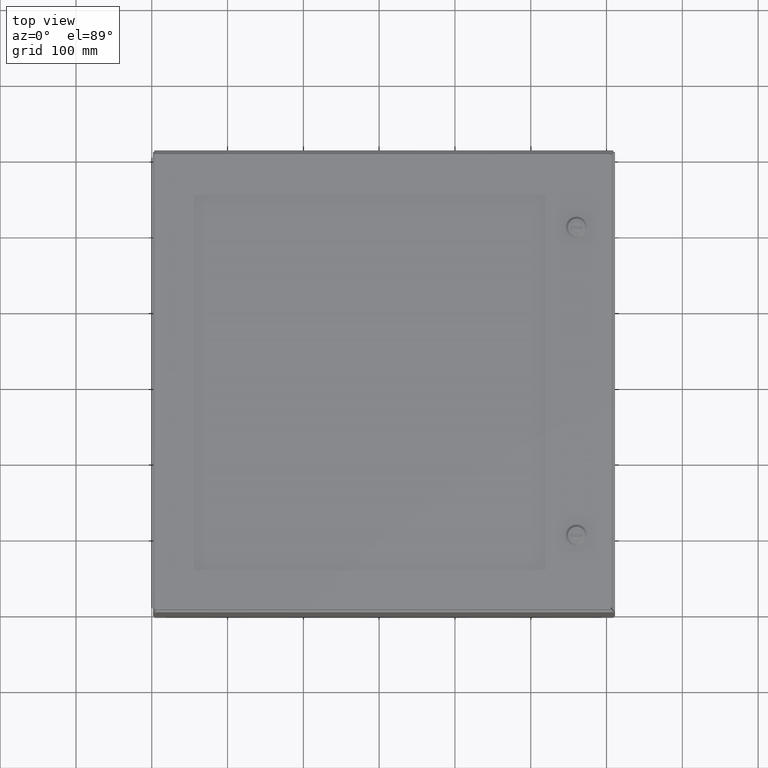
[diagram: clean part render]
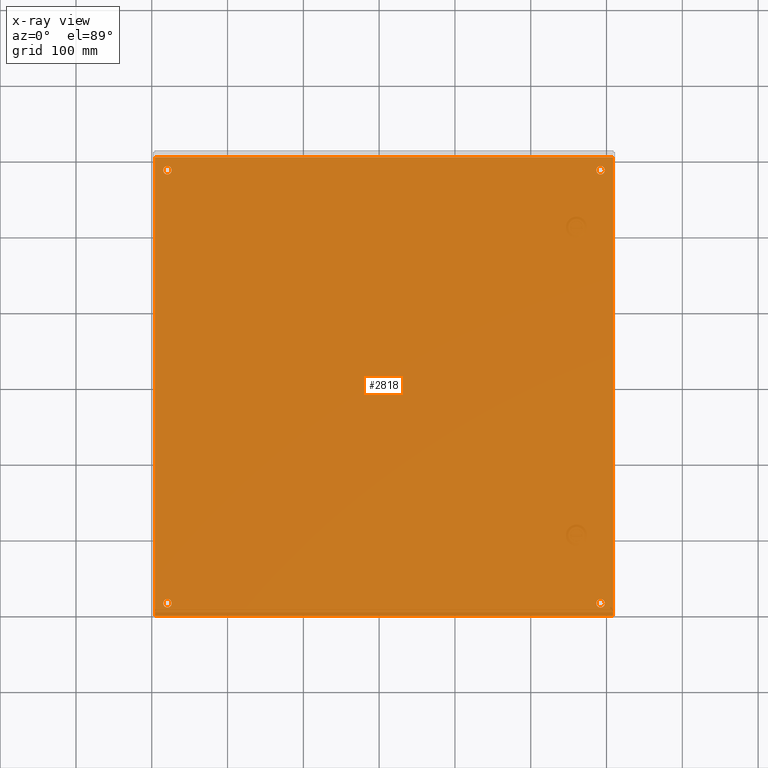
[diagram: x-ray — body ghosted, one internal face saturated and labeled with its STEP entity id]
A machine part, top view, then the same camera in x-ray: the body is ghosted and one INTERNAL B-rep face — a face not visible from any outside direction — is saturated and labeled: STEP entity #2818.
In plain terms, the highlighted planar face has unit normal (-0, 0, 1).
Its self-contained STEP definition (entity closure, byte-faithful):
#124=CARTESIAN_POINT('',(0.456999999999988,0.750000000000002,0.074000000000000));
#125=VERTEX_POINT('',#124);
#126=CARTESIAN_POINT('',(0.675999999999988,0.750000000000002,0.074000000000000));
#127=DIRECTION('',(0.0,0.0,-1.0));
#128=DIRECTION('',(1.0,0.0,0.0));
#129=AXIS2_PLACEMENT_3D('',#126,#127,#128);
#130=CIRCLE('',#129,0.219000000000000);
#131=EDGE_CURVE('',#125,#125,#130,.T.);
#152=CARTESIAN_POINT('',(22.956999999999997,0.750000000000002,0.074000000000000));
#153=VERTEX_POINT('',#152);
#154=CARTESIAN_POINT('',(23.175999999999998,0.750000000000002,0.074000000000000));
#155=DIRECTION('',(0.0,0.0,-1.0));
#156=DIRECTION('',(1.0,0.0,0.0));
#157=AXIS2_PLACEMENT_3D('',#154,#155,#156);
#158=CIRCLE('',#157,0.219000000000000);
#159=EDGE_CURVE('',#153,#153,#158,.T.);
#180=CARTESIAN_POINT('',(0.456999999999992,23.250000000000011,0.074000000000000));
#181=VERTEX_POINT('',#180);
#182=CARTESIAN_POINT('',(0.675999999999992,23.250000000000011,0.074000000000000));
#183=DIRECTION('',(0.0,0.0,-1.0));
#184=DIRECTION('',(1.0,0.0,0.0));
#185=AXIS2_PLACEMENT_3D('',#182,#183,#184);
#186=CIRCLE('',#185,0.219000000000000);
#187=EDGE_CURVE('',#181,#181,#186,.T.);
#208=CARTESIAN_POINT('',(22.956999999999997,23.250000000000011,0.074000000000000));
#209=VERTEX_POINT('',#208);
#210=CARTESIAN_POINT('',(23.175999999999998,23.250000000000011,0.074000000000000));
#211=DIRECTION('',(0.0,0.0,-1.0));
#212=DIRECTION('',(1.0,0.0,0.0));
#213=AXIS2_PLACEMENT_3D('',#210,#211,#212);
#214=CIRCLE('',#213,0.219000000000000);
#215=EDGE_CURVE('',#209,#209,#214,.T.);
#2537=CARTESIAN_POINT('',(23.851999999999997,23.894750000000002,0.074000000000000));
#2538=VERTEX_POINT('',#2537);
#2563=CARTESIAN_POINT('',(-7.335537E-015,23.894750000000002,0.074000000000000));
#2564=VERTEX_POINT('',#2563);
#2600=CARTESIAN_POINT('',(23.851999999999993,23.894750000000002,0.074000000000000));
#2601=DIRECTION('',(-1.0,0.0,0.0));
#2602=VECTOR('',#2601,23.852000000000000);
#2603=LINE('',#2600,#2602);
#2604=EDGE_CURVE('',#2538,#2564,#2603,.T.);
#2654=CARTESIAN_POINT('',(0.0,0.105250000000001,0.074000000000000));
#2655=VERTEX_POINT('',#2654);
#2680=CARTESIAN_POINT('',(23.852000000000000,0.105250000000001,0.074000000000000));
#2681=VERTEX_POINT('',#2680);
#2717=CARTESIAN_POINT('',(0.0,0.105250000000001,0.074000000000000));
#2718=DIRECTION('',(1.0,0.0,0.0));
#2719=VECTOR('',#2718,23.852000000000004);
#2720=LINE('',#2717,#2719);
#2721=EDGE_CURVE('',#2655,#2681,#2720,.T.);
#2740=CARTESIAN_POINT('',(23.851999999999993,23.894750000000002,0.074000000000000));
#2741=DIRECTION('',(0.0,-1.0,0.0));
#2742=VECTOR('',#2741,23.789500000000000);
#2743=LINE('',#2740,#2742);
#2744=EDGE_CURVE('',#2538,#2681,#2743,.T.);
#2784=CARTESIAN_POINT('',(-3.222352E-017,0.105249999999998,0.074000000000000));
#2785=DIRECTION('',(0.0,1.0,0.0));
#2786=VECTOR('',#2785,23.789500000000004);
#2787=LINE('',#2784,#2786);
#2788=EDGE_CURVE('',#2655,#2564,#2787,.T.);
#2795=CARTESIAN_POINT('',(11.925999999999995,12.000000000000004,0.074000000000000));
#2796=DIRECTION('',(0.0,0.0,1.0));
#2797=DIRECTION('',(1.0,0.0,0.0));
#2798=AXIS2_PLACEMENT_3D('',#2795,#2796,#2797);
#2799=PLANE('',#2798);
#2800=ORIENTED_EDGE('',*,*,#2721,.T.);
#2801=ORIENTED_EDGE('',*,*,#2744,.F.);
#2802=ORIENTED_EDGE('',*,*,#2604,.T.);
#2803=ORIENTED_EDGE('',*,*,#2788,.F.);
#2804=EDGE_LOOP('',(#2800,#2801,#2802,#2803));
#2805=FACE_OUTER_BOUND('',#2804,.T.);
#2806=ORIENTED_EDGE('',*,*,#131,.T.);
#2807=EDGE_LOOP('',(#2806));
#2808=FACE_BOUND('',#2807,.T.);
#2809=ORIENTED_EDGE('',*,*,#159,.T.);
#2810=EDGE_LOOP('',(#2809));
#2811=FACE_BOUND('',#2810,.T.);
#2812=ORIENTED_EDGE('',*,*,#187,.T.);
#2813=EDGE_LOOP('',(#2812));
#2814=FACE_BOUND('',#2813,.T.);
#2815=ORIENTED_EDGE('',*,*,#215,.T.);
#2816=EDGE_LOOP('',(#2815));
#2817=FACE_BOUND('',#2816,.T.);
#2818=ADVANCED_FACE('',(#2805,#2808,#2811,#2814,#2817),#2799,.T.);